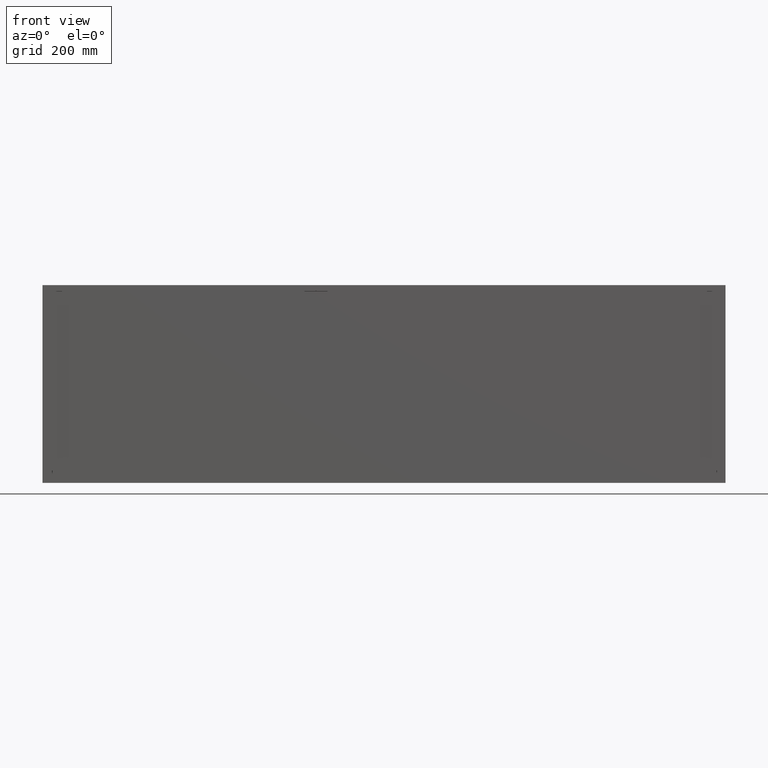
[diagram: clean part render]
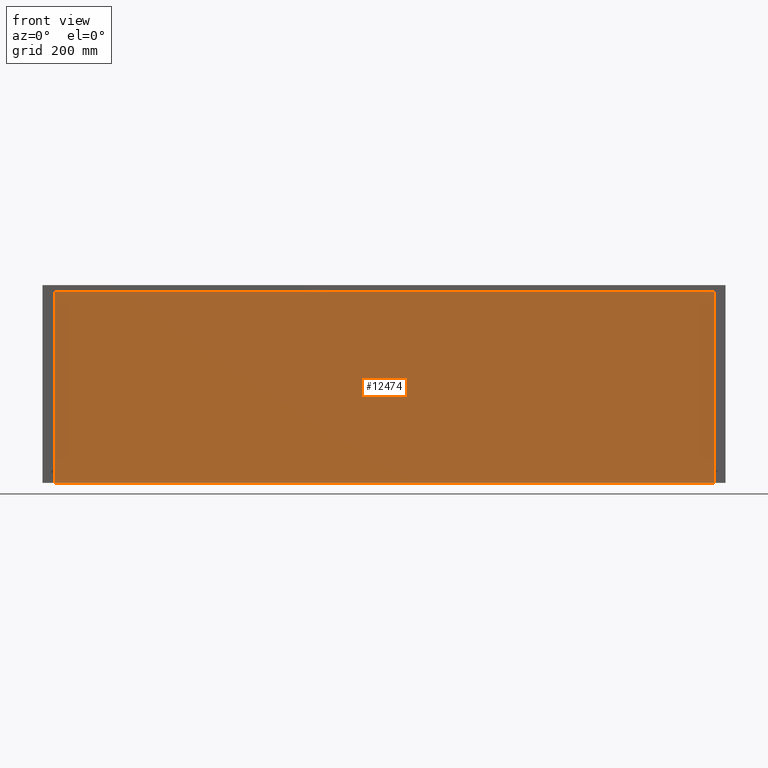
[diagram: same view with one face highlighted and labeled with its STEP entity id]
A machine part, front view. The second image highlights one B-rep face of the part: STEP entity #12474.
In plain terms, the highlighted planar face has unit normal (-0, 1, 0).
Its self-contained STEP definition (entity closure, byte-faithful):
#375 = CARTESIAN_POINT ( 'NONE',  ( 1596.000000000000000, 0.9999999999999991118, -16.00000000000001421 ) ) ;
#916 = CARTESIAN_POINT ( 'NONE',  ( 29.00000000000002487, 0.9999999999999991118, -16.00000000000001421 ) ) ;
#1318 = DIRECTION ( 'NONE',  ( 0.0000000000000000000, -0.0000000000000000000, 1.000000000000000000 ) ) ;
#1824 = CARTESIAN_POINT ( 'NONE',  ( 29.00000000000002487, 0.9999999999999991118, -470.0000000000000000 ) ) ;
#2464 = CARTESIAN_POINT ( 'NONE',  ( 29.00000000000002487, 0.9999999999999991118, -470.0000000000000000 ) ) ;
#2545 = PLANE ( 'NONE',  #13130 ) ;
#2719 = VERTEX_POINT ( 'NONE', #13048 ) ;
#3285 = VERTEX_POINT ( 'NONE', #2464 ) ;
#3478 = VECTOR ( 'NONE', #6821, 1000.000000000000000 ) ;
#3907 = LINE ( 'NONE', #8876, #8891 ) ;
#4186 = EDGE_CURVE ( 'NONE', #2719, #3285, #3907, .T. ) ;
#4653 = LINE ( 'NONE', #9618, #7724 ) ;
#5702 = LINE ( 'NONE', #10663, #12312 ) ;
#5957 = VERTEX_POINT ( 'NONE', #916 ) ;
#6821 = DIRECTION ( 'NONE',  ( 0.0000000000000000000, 0.0000000000000000000, 1.000000000000000000 ) ) ;
#7112 = ORIENTED_EDGE ( 'NONE', *, *, #9952, .F. ) ;
#7542 = CARTESIAN_POINT ( 'NONE',  ( 0.0000000000000000000, 0.9999999999999991118, 0.0000000000000000000 ) ) ;
#7724 = VECTOR ( 'NONE', #14580, 1000.000000000000000 ) ;
#8854 = EDGE_LOOP ( 'NONE', ( #10952, #12737, #7112, #14525 ) ) ;
#8876 = CARTESIAN_POINT ( 'NONE',  ( 29.00000000000002487, 0.9999999999999991118, -470.0000000000000000 ) ) ;
#8891 = VECTOR ( 'NONE', #13827, 1000.000000000000000 ) ;
#9618 = CARTESIAN_POINT ( 'NONE',  ( 29.00000000000002487, 0.9999999999999991118, -16.00000000000001421 ) ) ;
#9770 = VERTEX_POINT ( 'NONE', #375 ) ;
#9952 = EDGE_CURVE ( 'NONE', #9770, #2719, #5702, .T. ) ;
#10380 = EDGE_CURVE ( 'NONE', #3285, #5957, #14223, .T. ) ;
#10663 = CARTESIAN_POINT ( 'NONE',  ( 1596.000000000000000, 0.9999999999999991118, -470.0000000000000000 ) ) ;
#10952 = ORIENTED_EDGE ( 'NONE', *, *, #10380, .F. ) ;
#12312 = VECTOR ( 'NONE', #15637, 1000.000000000000000 ) ;
#12474 = ADVANCED_FACE ( 'NONE', ( #13712 ), #2545, .F. ) ;
#12491 = DIRECTION ( 'NONE',  ( -0.0000000000000000000, 1.000000000000000000, 0.0000000000000000000 ) ) ;
#12737 = ORIENTED_EDGE ( 'NONE', *, *, #4186, .F. ) ;
#13048 = CARTESIAN_POINT ( 'NONE',  ( 1596.000000000000000, 0.9999999999999991118, -470.0000000000000000 ) ) ;
#13130 = AXIS2_PLACEMENT_3D ( 'NONE', #7542, #12491, #1318 ) ;
#13712 = FACE_OUTER_BOUND ( 'NONE', #8854, .T. ) ;
#13827 = DIRECTION ( 'NONE',  ( -1.000000000000000000, -0.0000000000000000000, -0.0000000000000000000 ) ) ;
#14223 = LINE ( 'NONE', #1824, #3478 ) ;
#14525 = ORIENTED_EDGE ( 'NONE', *, *, #15007, .F. ) ;
#14580 = DIRECTION ( 'NONE',  ( 1.000000000000000000, 0.0000000000000000000, -8.856278116027092875E-18 ) ) ;
#15007 = EDGE_CURVE ( 'NONE', #5957, #9770, #4653, .T. ) ;
#15637 = DIRECTION ( 'NONE',  ( -0.0000000000000000000, -0.0000000000000000000, -1.000000000000000000 ) ) ;